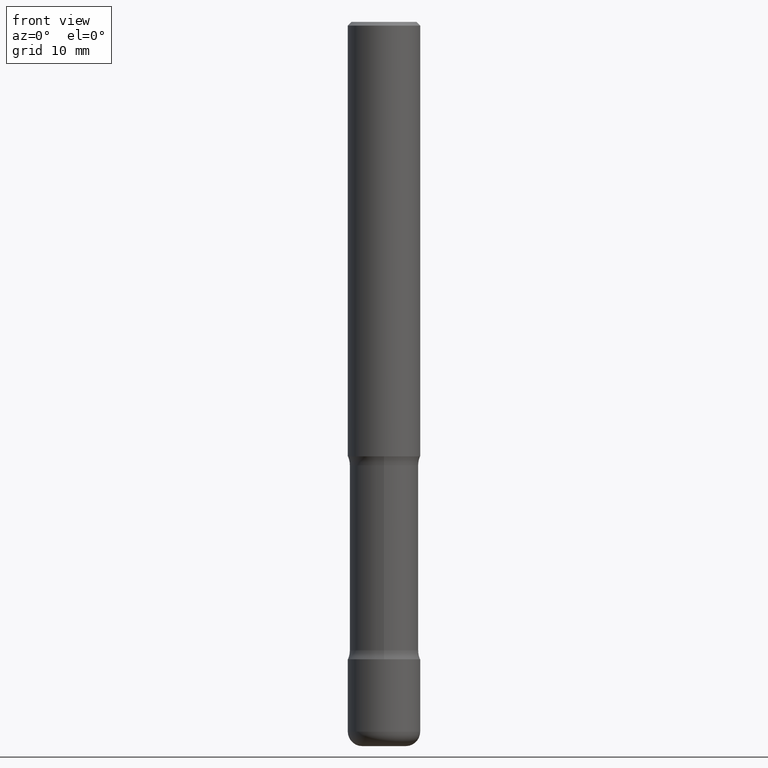
[diagram: clean part render]
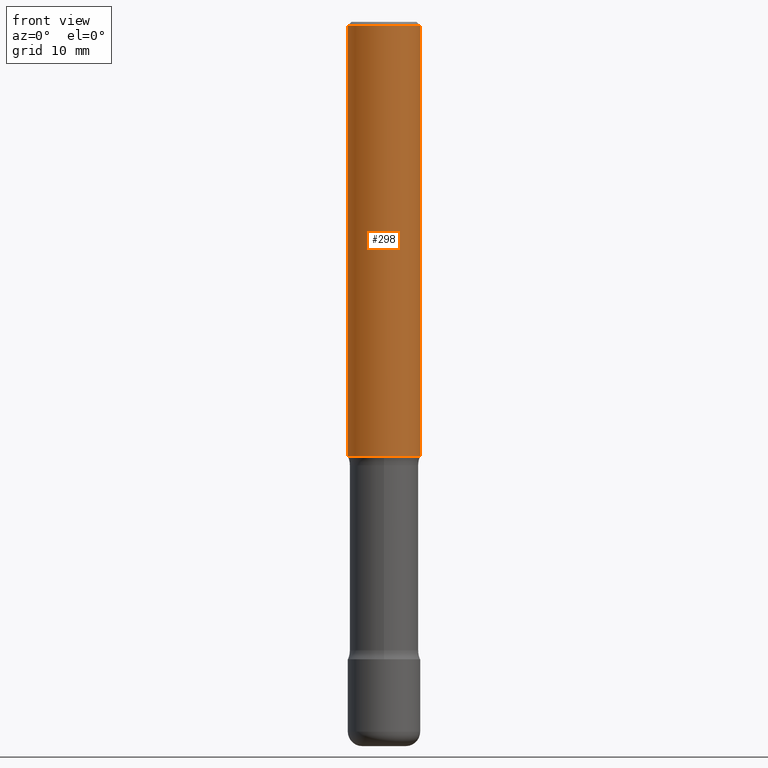
[diagram: same view with one face highlighted and labeled with its STEP entity id]
A machine part, front view. The second image highlights one B-rep face of the part: STEP entity #298.
In plain terms, the highlighted cylindrical surface (edge-blend (fillet) strip) has radius 5 mm, axis along (-0, 0, 1).
Its self-contained STEP definition (entity closure, byte-faithful):
#11 = CARTESIAN_POINT ( 'NONE',  ( 5.776686413970530874E-29, -8.247577218615281204E-15, -2.362200000000000522 ) ) ;
#34 = CARTESIAN_POINT ( 'NONE',  ( 0.000000000000000000, 0.000000000000000000, 0.000000000000000000 ) ) ;
#69 = DIRECTION ( 'NONE',  ( -2.445468806185136597E-29, 3.491481338843145583E-15, 1.000000000000000000 ) ) ;
#76 = DIRECTION ( 'NONE',  ( -2.445468806185136877E-29, 3.491481338843145188E-15, 1.000000000000000000 ) ) ;
#77 = DIRECTION ( 'NONE',  ( -2.445468806185136877E-29, 3.491481338843145188E-15, 1.000000000000000000 ) ) ;
#81 = VECTOR ( 'NONE', #76, 39.37007874015748143 ) ;
#83 = CARTESIAN_POINT ( 'NONE',  ( -0.1968499999999999139, 1.304766576325677916E-15, -0.02000000000000006981 ) ) ;
#139 = ORIENTED_EDGE ( 'NONE', *, *, #367, .T. ) ;
#157 = DIRECTION ( 'NONE',  ( 1.000000000000000000, -6.982962677686266711E-15, 0.000000000000000000 ) ) ;
#169 = DIRECTION ( 'NONE',  ( -2.445468806185136597E-29, 3.491481338843145583E-15, 1.000000000000000000 ) ) ;
#177 = AXIS2_PLACEMENT_3D ( 'NONE', #244, #69, #157 ) ;
#188 = ORIENTED_EDGE ( 'NONE', *, *, #552, .T. ) ;
#204 = CARTESIAN_POINT ( 'NONE',  ( 0.1968499999999999139, -1.420318657638188530E-15, -0.02000000000000006981 ) ) ;
#227 = VERTEX_POINT ( 'NONE', #204 ) ;
#244 = CARTESIAN_POINT ( 'NONE',  ( 4.890937612370289799E-31, -6.982962677686315028E-17, -0.02000000000000006981 ) ) ;
#253 = LINE ( 'NONE', #261, #521 ) ;
#261 = CARTESIAN_POINT ( 'NONE',  ( 0.1968500000000000250, -1.374596203102541608E-15, 9.598753983154300858E-30 ) ) ;
#266 = AXIS2_PLACEMENT_3D ( 'NONE', #11, #356, #433 ) ;
#271 = ORIENTED_EDGE ( 'NONE', *, *, #396, .F. ) ;
#298 = ADVANCED_FACE ( 'NONE', ( #519 ), #384, .T. ) ;
#304 = DIRECTION ( 'NONE',  ( 1.000000000000000000, -6.982962677686265922E-15, 4.876176775795935793E-29 ) ) ;
#335 = CARTESIAN_POINT ( 'NONE',  ( -0.1968500000000001082, -2.760000047352312097E-15, -2.362200000000000522 ) ) ;
#346 = CIRCLE ( 'NONE', #177, 0.1968499999999999139 ) ;
#352 = VERTEX_POINT ( 'NONE', #378 ) ;
#356 = DIRECTION ( 'NONE',  ( -2.445468806185136597E-29, 3.491481338843145583E-15, 1.000000000000000000 ) ) ;
#360 = VERTEX_POINT ( 'NONE', #83 ) ;
#367 = EDGE_CURVE ( 'NONE', #352, #227, #253, .T. ) ;
#378 = CARTESIAN_POINT ( 'NONE',  ( 0.1968500000000001082, -9.622173421717822812E-15, -2.362200000000000522 ) ) ;
#384 = CYLINDRICAL_SURFACE ( 'NONE', #448, 0.1968500000000000250 ) ;
#395 = VERTEX_POINT ( 'NONE', #335 ) ;
#396 = EDGE_CURVE ( 'NONE', #395, #360, #506, .T. ) ;
#412 = EDGE_LOOP ( 'NONE', ( #271, #188, #139, #527 ) ) ;
#422 = EDGE_CURVE ( 'NONE', #360, #227, #346, .T. ) ;
#433 = DIRECTION ( 'NONE',  ( 1.000000000000000000, -6.982962677686265133E-15, 0.000000000000000000 ) ) ;
#448 = AXIS2_PLACEMENT_3D ( 'NONE', #34, #169, #304 ) ;
#466 = CARTESIAN_POINT ( 'NONE',  ( -0.1968500000000000250, 1.398703375343757393E-15, -9.682923725166783677E-30 ) ) ;
#506 = LINE ( 'NONE', #466, #81 ) ;
#510 = CIRCLE ( 'NONE', #266, 0.1968500000000001082 ) ;
#519 = FACE_OUTER_BOUND ( 'NONE', #412, .T. ) ;
#521 = VECTOR ( 'NONE', #77, 39.37007874015748143 ) ;
#527 = ORIENTED_EDGE ( 'NONE', *, *, #422, .F. ) ;
#552 = EDGE_CURVE ( 'NONE', #395, #352, #510, .T. ) ;